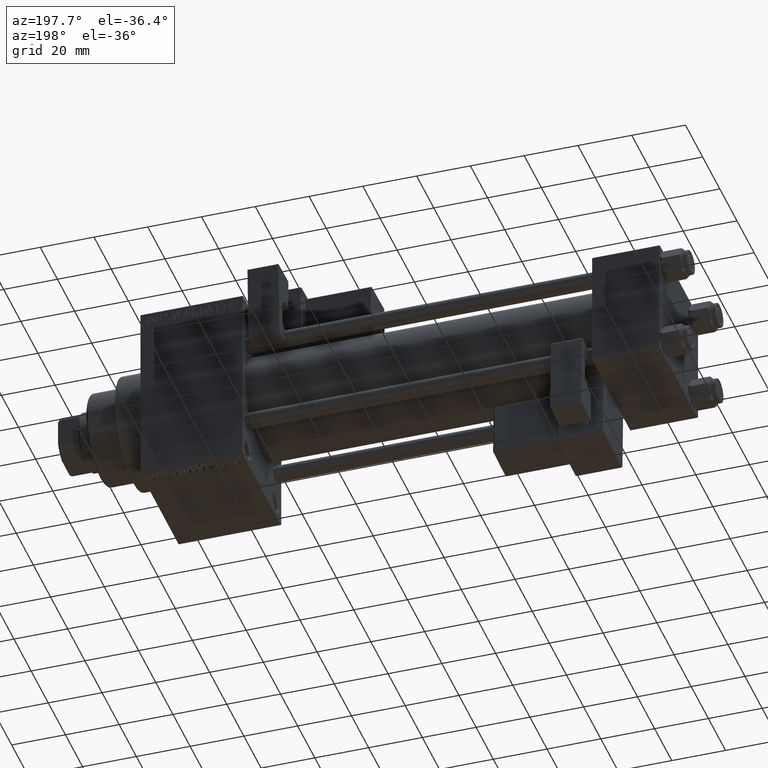
[diagram: clean part render]
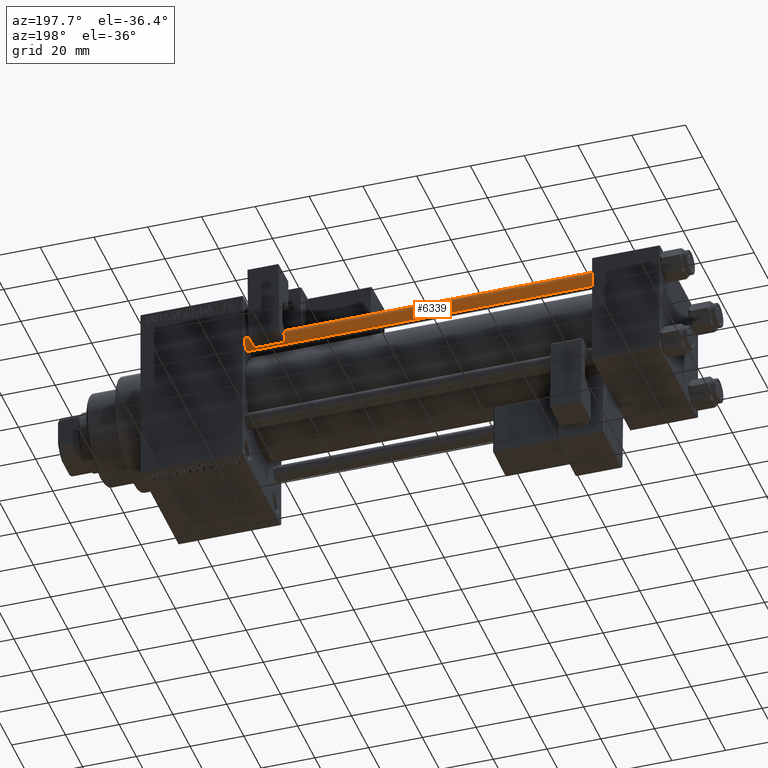
[diagram: same view with one face highlighted and labeled with its STEP entity id]
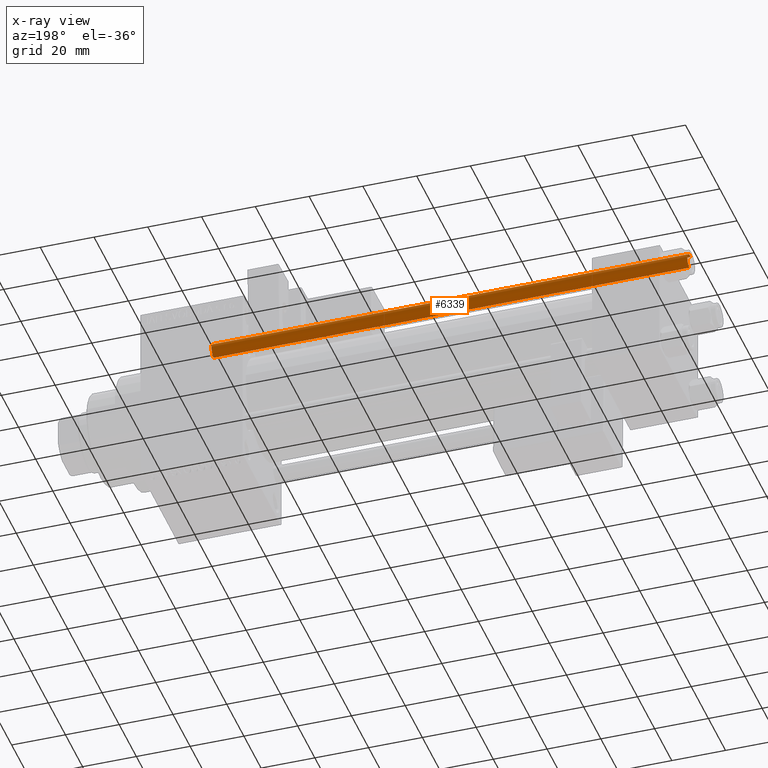
[diagram: x-ray of the same camera — body ghosted, the highlighted face saturated]
A machine part, auxiliary view. The second image highlights one B-rep face of the part: STEP entity #6339.
The next image is the same camera in x-ray: the body ghosted, the highlighted face saturated — about 0% of this face is hidden behind the body in this view.
In plain terms, the highlighted cylindrical surface (edge-blend (fillet) strip) has radius 3 mm, axis along (-1, -0, 0).
Its self-contained STEP definition (entity closure, byte-faithful):
#1793 = DIRECTION ( 'NONE',  ( -0.000000000000000000, -0.000000000000000000, -1.000000000000000000 ) ) ;
#3452 = DIRECTION ( 'NONE',  ( 1.000000000000000000, 0.000000000000000000, 0.000000000000000000 ) ) ;
#3990 = CARTESIAN_POINT ( 'NONE',  ( 0.000000000000000000, 0.000000000000000000, 177.5000000000000000 ) ) ;
#4540 = EDGE_CURVE ( 'NONE', #46829, #44097, #48649, .T. ) ;
#4747 = DIRECTION ( 'NONE',  ( -0.000000000000000000, -0.000000000000000000, -1.000000000000000000 ) ) ;
#5503 = DIRECTION ( 'NONE',  ( -1.000000000000000000, 0.000000000000000000, 0.000000000000000000 ) ) ;
#6339 = ADVANCED_FACE ( 'NONE', ( #31495 ), #12506, .T. ) ;
#6895 = CIRCLE ( 'NONE', #7674, 3.000000000000000444 ) ;
#7142 = CARTESIAN_POINT ( 'NONE',  ( -3.000000000000000444, 0.000000000000000000, 177.5000000000000000 ) ) ;
#7674 = AXIS2_PLACEMENT_3D ( 'NONE', #3990, #30732, #11993 ) ;
#7691 = CARTESIAN_POINT ( 'NONE',  ( 0.000000000000000000, 0.000000000000000000, 0.5000000000000281997 ) ) ;
#8519 = CARTESIAN_POINT ( 'NONE',  ( -3.000000000000000444, 0.000000000000000000, 0.5000000000000281997 ) ) ;
#11198 = DIRECTION ( 'NONE',  ( -0.000000000000000000, -0.000000000000000000, 1.000000000000000000 ) ) ;
#11993 = DIRECTION ( 'NONE',  ( 1.000000000000000000, 0.000000000000000000, 0.000000000000000000 ) ) ;
#12506 = CYLINDRICAL_SURFACE ( 'NONE', #35774, 3.000000000000000444 ) ;
#14392 = DIRECTION ( 'NONE',  ( -0.000000000000000000, -0.000000000000000000, -1.000000000000000000 ) ) ;
#15635 = VERTEX_POINT ( 'NONE', #45747 ) ;
#16805 = CARTESIAN_POINT ( 'NONE',  ( 3.000000000000000444, 3.673940397442060361E-16, 178.0000000000000000 ) ) ;
#18793 = ORIENTED_EDGE ( 'NONE', *, *, #40551, .T. ) ;
#20534 = VECTOR ( 'NONE', #14392, 1000.000000000000000 ) ;
#22002 = CARTESIAN_POINT ( 'NONE',  ( 3.000000000000000444, 3.673940397442060361E-16, 0.5000000000000281997 ) ) ;
#23591 = VERTEX_POINT ( 'NONE', #22002 ) ;
#28787 = LINE ( 'NONE', #16805, #41059 ) ;
#29829 = AXIS2_PLACEMENT_3D ( 'NONE', #7691, #11198, #3452 ) ;
#30732 = DIRECTION ( 'NONE',  ( 0.000000000000000000, 0.000000000000000000, -1.000000000000000000 ) ) ;
#31025 = ORIENTED_EDGE ( 'NONE', *, *, #4540, .F. ) ;
#31495 = FACE_OUTER_BOUND ( 'NONE', #43079, .T. ) ;
#33867 = ORIENTED_EDGE ( 'NONE', *, *, #36377, .T. ) ;
#35474 = EDGE_CURVE ( 'NONE', #23591, #44097, #43424, .T. ) ;
#35774 = AXIS2_PLACEMENT_3D ( 'NONE', #39757, #4747, #5503 ) ;
#36189 = ORIENTED_EDGE ( 'NONE', *, *, #35474, .T. ) ;
#36377 = EDGE_CURVE ( 'NONE', #15635, #23591, #28787, .T. ) ;
#39757 = CARTESIAN_POINT ( 'NONE',  ( 0.000000000000000000, 0.000000000000000000, 178.0000000000000000 ) ) ;
#40551 = EDGE_CURVE ( 'NONE', #46829, #15635, #6895, .T. ) ;
#40901 = CARTESIAN_POINT ( 'NONE',  ( -3.000000000000000444, 0.000000000000000000, 178.0000000000000000 ) ) ;
#41059 = VECTOR ( 'NONE', #1793, 1000.000000000000000 ) ;
#43079 = EDGE_LOOP ( 'NONE', ( #18793, #33867, #36189, #31025 ) ) ;
#43424 = CIRCLE ( 'NONE', #29829, 3.000000000000000444 ) ;
#44097 = VERTEX_POINT ( 'NONE', #8519 ) ;
#45747 = CARTESIAN_POINT ( 'NONE',  ( 3.000000000000000444, 3.673940397442060361E-16, 177.5000000000000000 ) ) ;
#46829 = VERTEX_POINT ( 'NONE', #7142 ) ;
#48649 = LINE ( 'NONE', #40901, #20534 ) ;